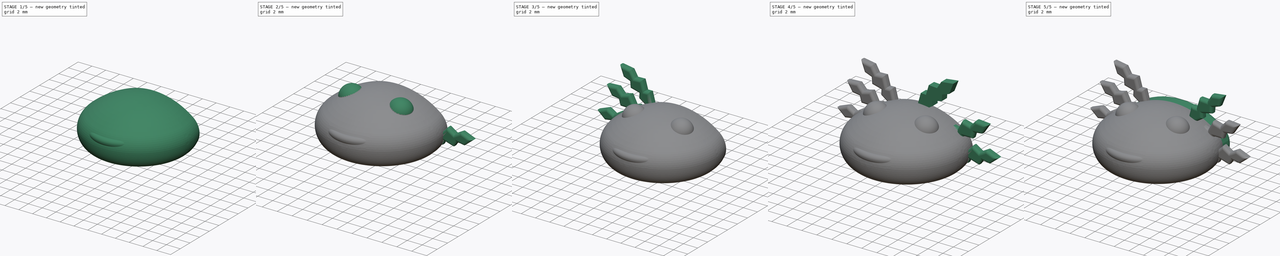
[diagram: build sequence overview — one tinted view per stage of 5, left to right]
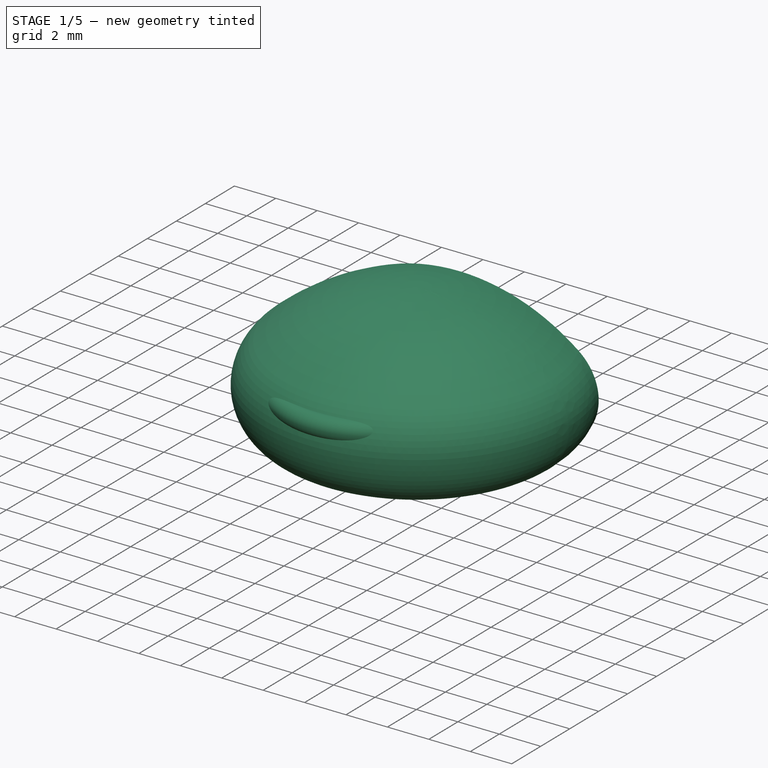
[diagram: stage 1 of 5 — iso view after this stage's code; geometry added in this stage tinted green]
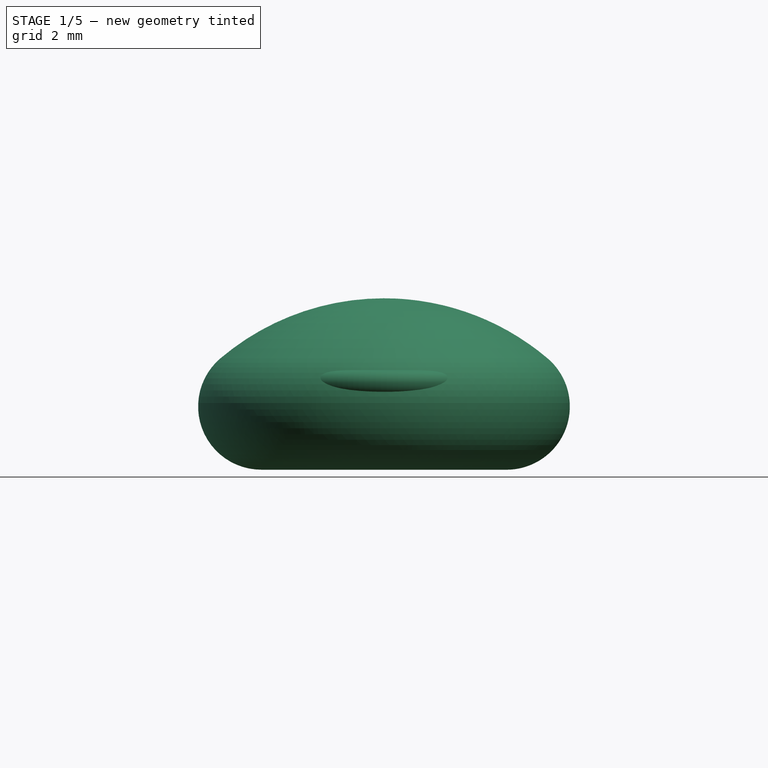
[diagram: stage 1 of 5 — front view after this stage's code; geometry added in this stage tinted green]
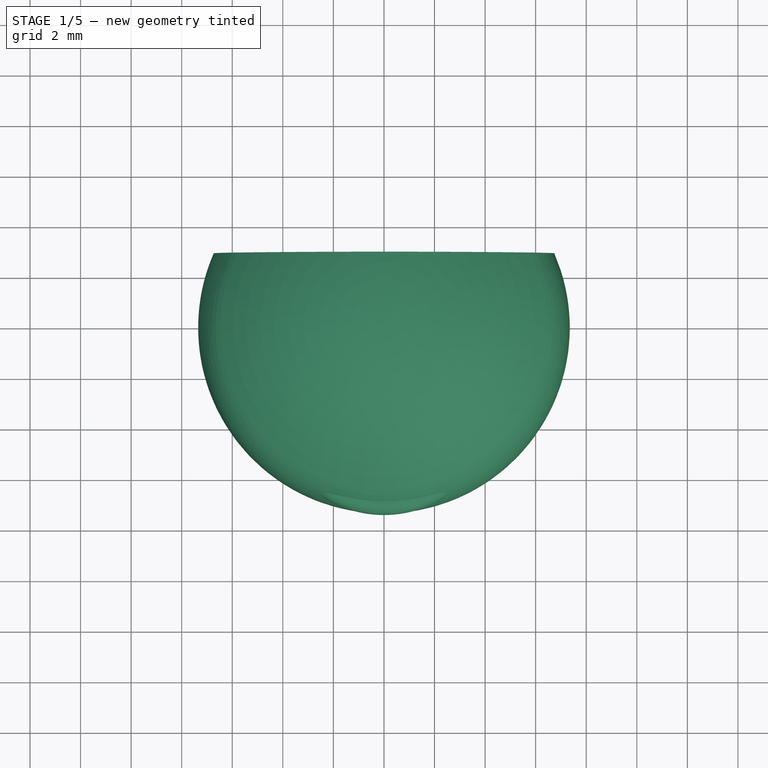
[diagram: stage 1 of 5 — top view after this stage's code; geometry added in this stage tinted green]
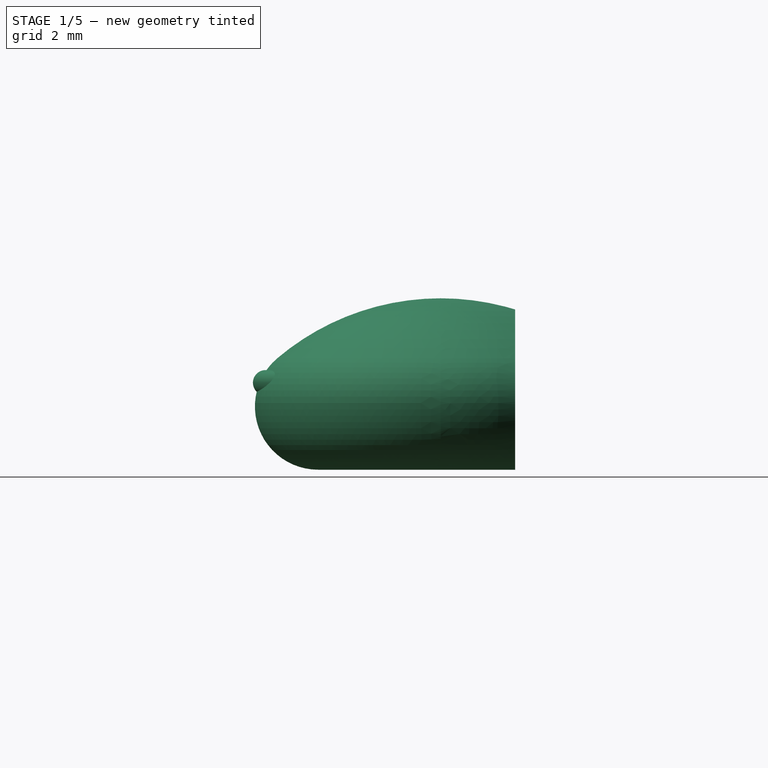
[diagram: stage 1 of 5 — right view after this stage's code; geometry added in this stage tinted green]
FCSTD DOCUMENT  (FreeCAD 1.0R38806 (Git))
Label: Cabeza-ajolote
License: All rights reserved
LicenseURL: https://en.wikipedia.org/wiki/All_rights_reserved
objects: Part::Fillet×14, Sketcher::SketchObject×7, Part::Extrusion×7, Part::MultiFuse×6, TechDraw::DrawProjGroupItem×4, Part::Sphere×3, Part::Box×2, Part::Cut×2, TechDraw::DrawProjGroup×2, Part::Torus×1, TechDraw::DrawSVGTemplate×1, TechDraw::DrawPage×1
note: 49 computed .brp shape members not serialized (recipe doc carries the construction recipe); baked Part::Feature solids carry a one-line shape summary decoded from their .brp

FEATURE [Part::Sphere] Sphere
  Angle1 = -90
  Angle2 = 90
  Angle3 = 360
  AttacherType = Attacher::AttachEngine3D
  Radius = 10
FEATURE [Part::Box] Box  label="Cube"
  AttacherType = Attacher::AttachEngine3D
  Height = 25
  Length = 25
  Placement = pos=(-11.86,2.94,-12.48) rot=(0,0,1;0rad)
  Width = 25
FEATURE [Part::Cut] Cut
  Base = -> Sphere
  Refine = true
  Tool = -> Box
FEATURE [Part::Box] Box001  label="Cube001"
  AttacherType = Attacher::AttachEngine3D
  Height = 25
  Length = 25
  Placement = pos=(-13.22,-13.51,-21.78) rot=(0,0,1;0rad)
  Width = 25
FEATURE [Part::Cut] Cut001
  Base = -> Cut
  Refine = true
  Tool = -> Box001
FEATURE [Part::Fillet] Fillet  label="cabeza"
  Base = -> Cut001
  EdgeLinks = -> Cut001 [Edge1]
  Edges = 1 edges r=2.5: [Edge1]
FEATURE [Part::Torus] Torus
  Angle1 = -180
  Angle2 = 180
  Angle3 = 360
  AttacherType = Attacher::AttachEngine3D
  Placement = pos=(0,-2.93,6.66) rot=(0,0,1;0rad)
  Radius1 = 4
  Radius2 = 0.5
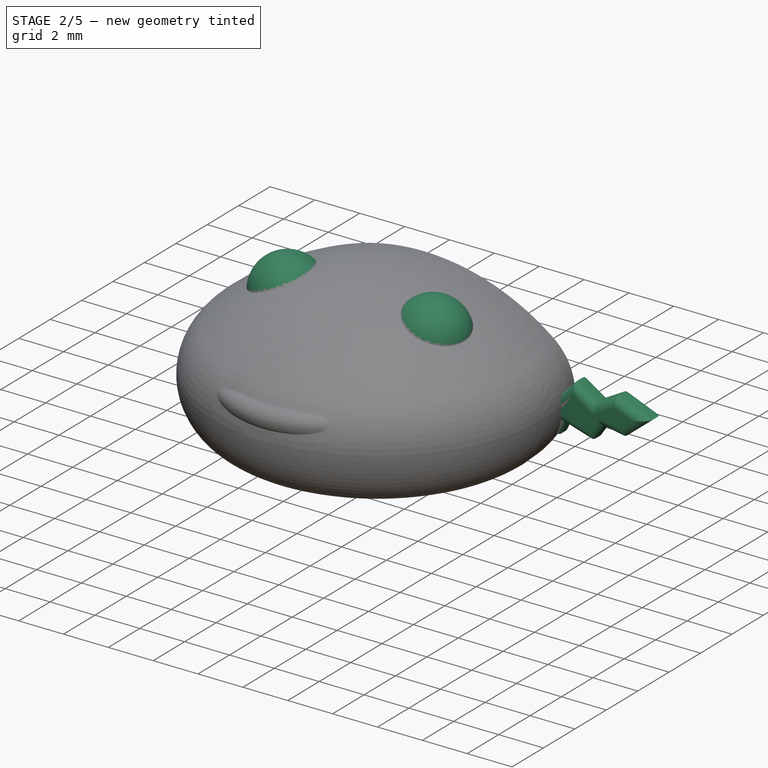
[diagram: stage 2 of 5 — iso view after this stage's code; geometry added in this stage tinted green]
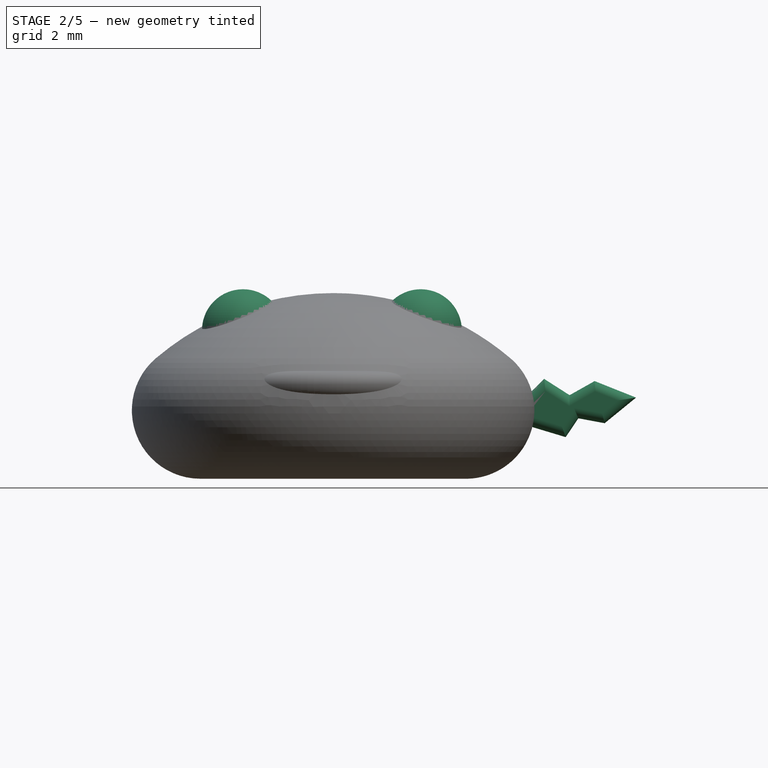
[diagram: stage 2 of 5 — front view after this stage's code; geometry added in this stage tinted green]
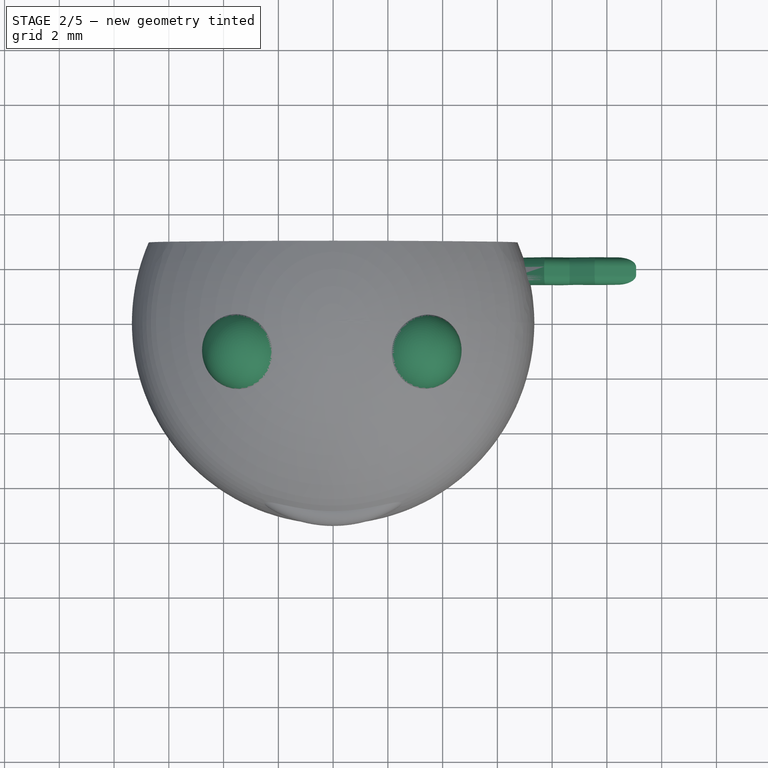
[diagram: stage 2 of 5 — top view after this stage's code; geometry added in this stage tinted green]
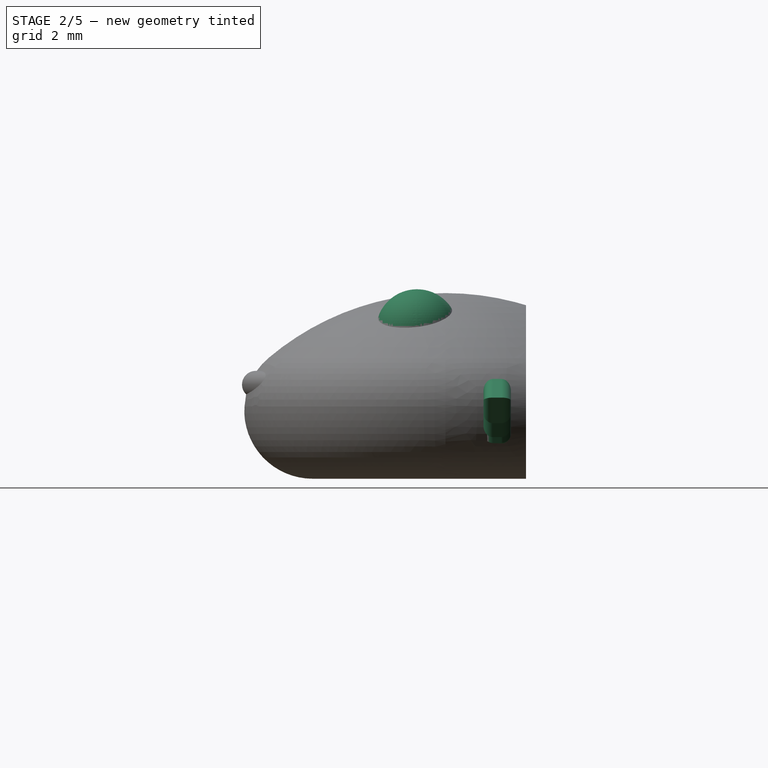
[diagram: stage 2 of 5 — right view after this stage's code; geometry added in this stage tinted green]
FEATURE [Part::Sphere] Sphere001  label="ojo-izdo"
  Angle1 = -90
  Angle2 = 90
  Angle3 = 360
  AttacherType = Attacher::AttachEngine3D
  Placement = pos=(3.2,-1.04,8.64) rot=(0,0,1;0rad)
  Radius = 1.5
FEATURE [Part::Sphere] Sphere002  label="ojo-drcho"
  Angle1 = -90
  Angle2 = 90
  Angle3 = 360
  AttacherType = Attacher::AttachEngine3D
  Placement = pos=(-3.29,-1.04,8.64) rot=(0,0,1;0rad)
  Radius = 1.5
FEATURE [Sketcher::SketchObject] Sketch008
  ArcFitTolerance = 1e-06
  FullyConstrained = false
  MakeInternals = false
  Placement = pos=(0,0,0) rot=(1,0,0;1.5708rad)
  sketch-geometry (13):
    g0: LineSegment StartX=0 StartY=9.96885 StartZ=0 EndX=0.507839 EndY=11.7568 EndZ=0
    g1: LineSegment StartX=0.507839 StartY=11.7568 StartZ=0 EndX=1.19552 EndY=11.7224 EndZ=0
    g2: LineSegment StartX=1.19552 StartY=11.7224 StartZ=0 EndX=1.57374 EndY=12.9946 EndZ=0
    g3: LineSegment StartX=1.57374 StartY=12.9946 StartZ=0 EndX=2.67402 EndY=12.9259 EndZ=0
    g4: LineSegment StartX=2.67402 StartY=12.9259 StartZ=0 EndX=3.22417 EndY=13.8198 EndZ=0
    g5: LineSegment StartX=3.22417 StartY=13.8198 StartZ=0 EndX=4.84021 EndY=14.0261 EndZ=0
    g6: LineSegment StartX=4.84021 StartY=14.0261 StartZ=0 EndX=4.29006 EndY=12.6508 EndZ=0
    g7: LineSegment StartX=4.29006 StartY=12.6508 StartZ=0 EndX=3.3617 EndY=12.3413 EndZ=0
    g8: LineSegment StartX=3.3617 StartY=12.3413 StartZ=0 EndX=3.29293 EndY=11.5161 EndZ=0
    g9: LineSegment StartX=3.29293 StartY=11.5161 StartZ=0 EndX=2.02073 EndY=11.2411 EndZ=0
    g10: LineSegment StartX=2.02073 StartY=11.2411 StartZ=0 EndX=2.05511 EndY=10.5878 EndZ=0
    g11: LineSegment StartX=2.05511 StartY=10.5878 StartZ=0 EndX=0.989213 EndY=9.90009 EndZ=0
    g12: LineSegment StartX=0.989213 StartY=9.90009 StartZ=0 EndX=0 EndY=9.96885 EndZ=0
  constraints (14):
    c: PointOnObject(g0,g-2)
    c: Coincident(g0,g1)
    c: Coincident(g1,g2)
    c: Coincident(g2,g3)
    c: Coincident(g3,g4)
    c: Coincident(g4,g5)
    c: Coincident(g5,g6)
    c: Coincident(g6,g7)
    c: Coincident(g7,g8)
    c: Coincident(g8,g9)
    c: Coincident(g9,g10)
    c: Coincident(g10,g11)
    c: Coincident(g11,g12)
    c: Coincident(g12,g0)
FEATURE [Part::Extrusion] Extrude006
  Base = -> Sketch008
  Dir = (0,-1,2e-16)
  DirMode = 2
  FaceMakerClass = Part::FaceMakerBullseye
  FaceMakerMode = 3
  LengthFwd = 1
  LengthRev = 0
  Placement = pos=(0,2.92,-0.63) rot=(0,0,1;0rad)
  Solid = true
  Symmetric = false
FEATURE [Part::Fillet] Fillet012
  Base = -> Extrude006
  EdgeLinks = -> Extrude006 [Edge4,Edge7,Edge10,Edge13,Edge16,Edge19,Edge22,Edge25,Edge28,Edge31,Edge34,Edge37]
  Edges = 12 edges r=0.35: [Edge4,Edge7,Edge10,Edge13,Edge16,Edge19,Edge22,Edge25,Edge28,Edge31,Edge34,Edge37]
FEATURE [Part::Fillet] Fillet013  label="cresta005"
  Base = -> Fillet012
  EdgeLinks = -> Fillet012 [Edge3,Edge12,Edge13,Edge14,Edge15,Edge16,Edge17,Edge18,Edge19,Edge20,Edge21,Edge22]
  Edges = 12 edges r=0.35: [Edge3,Edge12,Edge13,Edge14,Edge15,Edge16,Edge17,Edge18,Edge19,Edge20,Edge21,Edge22]
  Placement = pos=(0.337681,-0.53,-3.18565) rot=(0,1,0;0.506145rad)
FEATURE [Part::MultiFuse] Fusion004  label="ojos"
  Refine = true
  Shapes = -> [Sphere002,Sphere001]
FEATURE [Part::MultiFuse] Fusion005  label="cara"
  Refine = true
  Shapes = -> [Fillet,Torus]
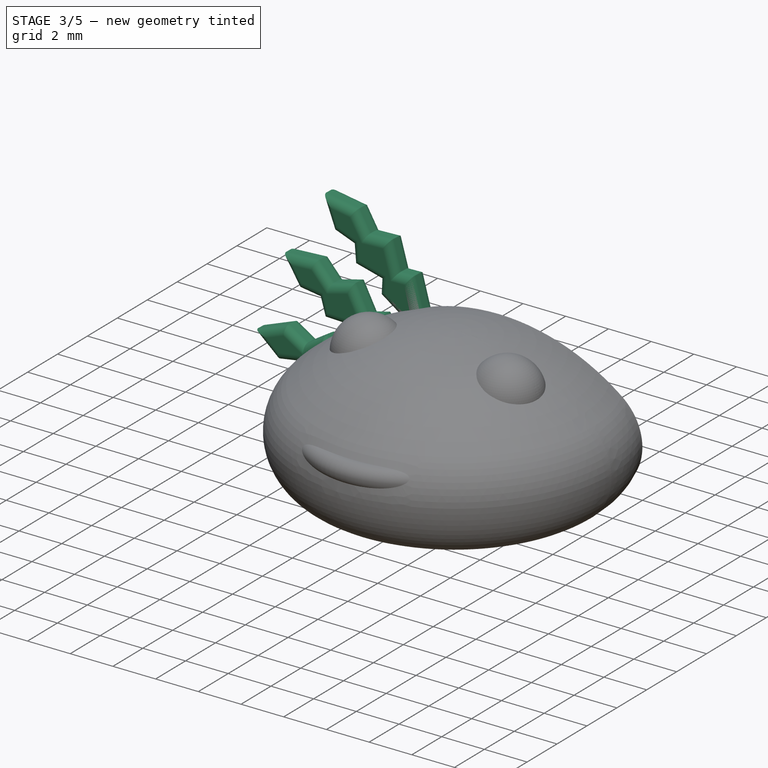
[diagram: stage 3 of 5 — iso view after this stage's code; geometry added in this stage tinted green]
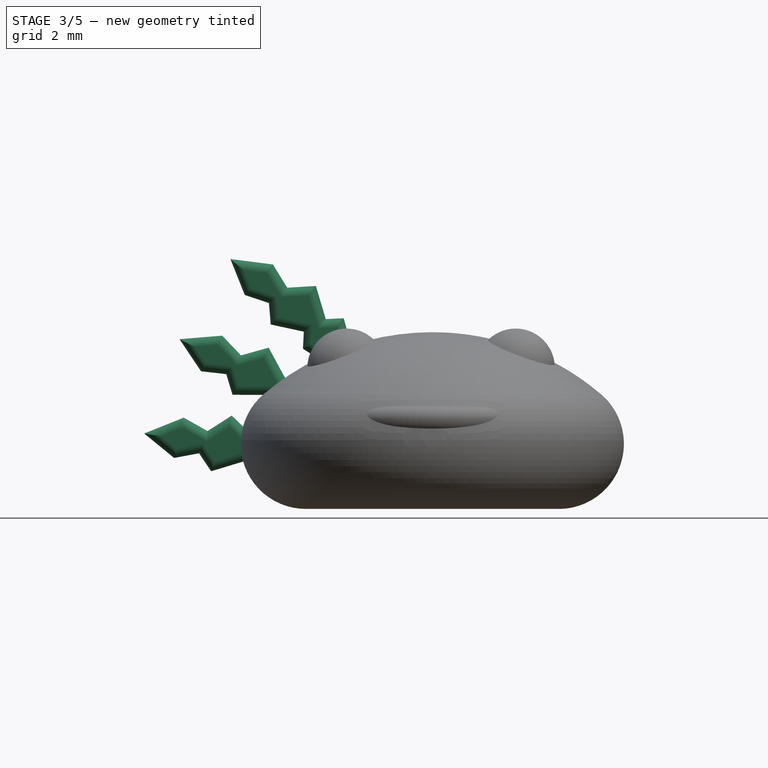
[diagram: stage 3 of 5 — front view after this stage's code; geometry added in this stage tinted green]
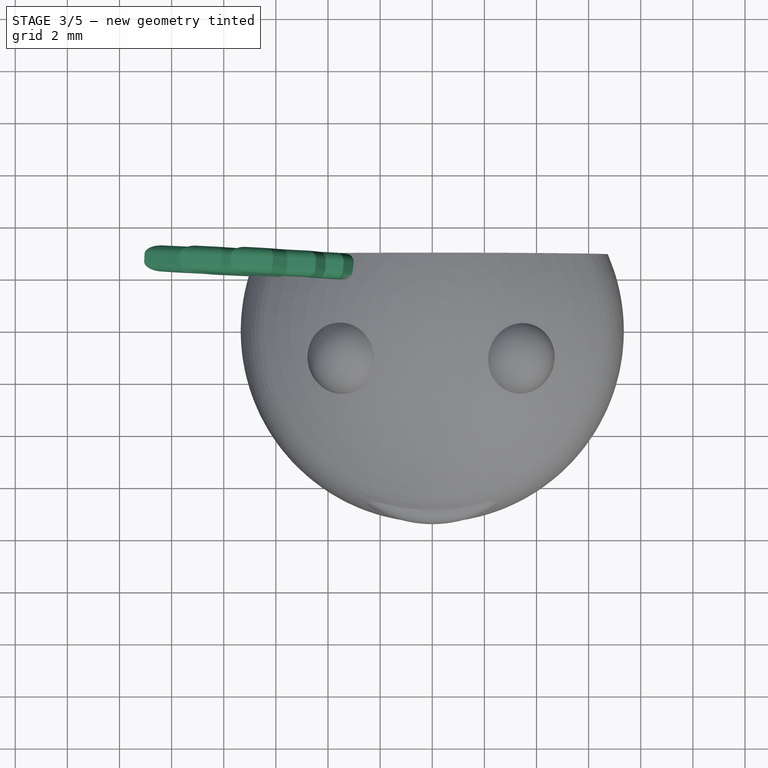
[diagram: stage 3 of 5 — top view after this stage's code; geometry added in this stage tinted green]
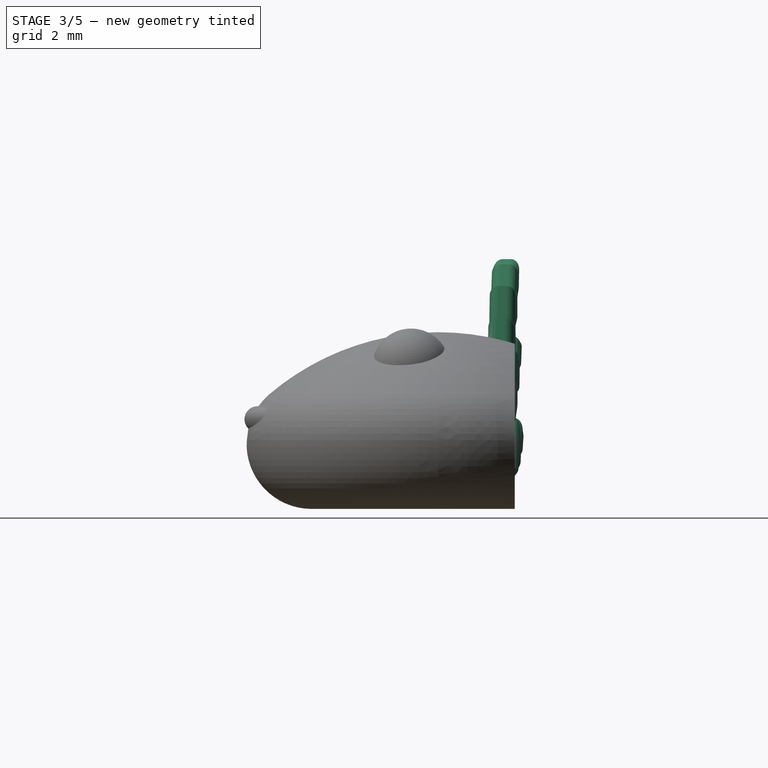
[diagram: stage 3 of 5 — right view after this stage's code; geometry added in this stage tinted green]
FEATURE [Sketcher::SketchObject] Sketch006  label="Sketch_cresta"
  ArcFitTolerance = 1e-06
  FullyConstrained = false
  MakeInternals = false
  Placement = pos=(0,0,0) rot=(1,0,0;1.5708rad)
  sketch-geometry (13):
    g0: LineSegment StartX=0 StartY=9.96615 StartZ=0 EndX=0.507839 EndY=11.7568 EndZ=0
    g1: LineSegment StartX=0.507839 StartY=11.7568 StartZ=0 EndX=1.19552 EndY=11.7224 EndZ=0
    g2: LineSegment StartX=1.19552 StartY=11.7224 StartZ=0 EndX=1.57374 EndY=12.9946 EndZ=0
    g3: LineSegment StartX=1.57374 StartY=12.9946 StartZ=0 EndX=2.67402 EndY=12.9259 EndZ=0
    g4: LineSegment StartX=2.67402 StartY=12.9259 StartZ=0 EndX=3.22417 EndY=13.8198 EndZ=0
    g5: LineSegment StartX=3.22417 StartY=13.8198 StartZ=0 EndX=4.84021 EndY=14.0261 EndZ=0
    g6: LineSegment StartX=4.84021 StartY=14.0261 StartZ=0 EndX=4.29006 EndY=12.6508 EndZ=0
    g7: LineSegment StartX=4.29006 StartY=12.6508 StartZ=0 EndX=3.3617 EndY=12.3413 EndZ=0
    g8: LineSegment StartX=3.3617 StartY=12.3413 StartZ=0 EndX=3.29293 EndY=11.5161 EndZ=0
    g9: LineSegment StartX=3.29293 StartY=11.5161 StartZ=0 EndX=2.02073 EndY=11.2411 EndZ=0
    g10: LineSegment StartX=2.02073 StartY=11.2411 StartZ=0 EndX=2.05511 EndY=10.5878 EndZ=0
    g11: LineSegment StartX=2.05511 StartY=10.5878 StartZ=0 EndX=0.989213 EndY=9.90009 EndZ=0
    g12: LineSegment StartX=0.989213 StartY=9.90009 StartZ=0 EndX=0 EndY=9.96615 EndZ=0
  constraints (15):
    c: PointOnObject(g0,g-2)
    c: Coincident(g0,g1)
    c: Coincident(g1,g2)
    c: Coincident(g2,g3)
    c: Coincident(g3,g4)
    c: Coincident(g4,g5)
    c: Coincident(g5,g6)
    c: Coincident(g6,g7)
    c: Coincident(g7,g8)
    c: Coincident(g8,g9)
    c: Coincident(g9,g10)
    c: Coincident(g10,g11)
    c: Coincident(g11,g12)
    c: Coincident(g12,g0)
    c: DistanceY(g0,g5) = 4.06
FEATURE [Part::Extrusion] Extrude004
  Base = -> Sketch006
  Dir = (0,-1,2e-16)
  DirMode = 2
  FaceMakerClass = Part::FaceMakerBullseye
  FaceMakerMode = 3
  LengthFwd = 1
  LengthRev = 0
  Placement = pos=(0,2.92,-0.63) rot=(0,0,1;0rad)
  Solid = true
  Symmetric = false
FEATURE [Part::Fillet] Fillet008
  Base = -> Extrude004
  EdgeLinks = -> Extrude004 [Edge4,Edge7,Edge10,Edge13,Edge16,Edge19,Edge22,Edge25,Edge28,Edge31,Edge34,Edge37]
  Edges = 12 edges r=0.35: [Edge4,Edge7,Edge10,Edge13,Edge16,Edge19,Edge22,Edge25,Edge28,Edge31,Edge34,Edge37]
FEATURE [Part::Fillet] Fillet009  label="cresta003"
  Base = -> Fillet008
  EdgeLinks = -> Fillet008 [Edge3,Edge12,Edge13,Edge14,Edge15,Edge16,Edge17,Edge18,Edge19,Edge20,Edge21,Edge22]
  Edges = 12 edges r=0.35: [Edge3,Edge12,Edge13,Edge14,Edge15,Edge16,Edge17,Edge18,Edge19,Edge20,Edge21,Edge22]
  Placement = pos=(2.91,-0.53,-0.52) rot=(0,0,1;0rad)
FEATURE [Sketcher::SketchObject] Sketch007
  ArcFitTolerance = 1e-06
  FullyConstrained = false
  MakeInternals = false
  Placement = pos=(0,0,0) rot=(1,0,0;1.5708rad)
  sketch-geometry (13):
    g0: LineSegment StartX=0 StartY=9.96885 StartZ=0 EndX=0.507839 EndY=11.7568 EndZ=0
    g1: LineSegment StartX=0.507839 StartY=11.7568 StartZ=0 EndX=1.19552 EndY=11.7224 EndZ=0
    g2: LineSegment StartX=1.19552 StartY=11.7224 StartZ=0 EndX=1.57374 EndY=12.9946 EndZ=0
    g3: LineSegment StartX=1.57374 StartY=12.9946 StartZ=0 EndX=2.67402 EndY=12.9259 EndZ=0
    g4: LineSegment StartX=2.67402 StartY=12.9259 StartZ=0 EndX=3.22417 EndY=13.8198 EndZ=0
    g5: LineSegment StartX=3.22417 StartY=13.8198 StartZ=0 EndX=4.84021 EndY=14.0261 EndZ=0
    g6: LineSegment StartX=4.84021 StartY=14.0261 StartZ=0 EndX=4.29006 EndY=12.6508 EndZ=0
    g7: LineSegment StartX=4.29006 StartY=12.6508 StartZ=0 EndX=3.3617 EndY=12.3413 EndZ=0
    g8: LineSegment StartX=3.3617 StartY=12.3413 StartZ=0 EndX=3.29293 EndY=11.5161 EndZ=0
    g9: LineSegment StartX=3.29293 StartY=11.5161 StartZ=0 EndX=2.02073 EndY=11.2411 EndZ=0
    g10: LineSegment StartX=2.02073 StartY=11.2411 StartZ=0 EndX=2.05511 EndY=10.5878 EndZ=0
    g11: LineSegment StartX=2.05511 StartY=10.5878 StartZ=0 EndX=0.989213 EndY=9.90009 EndZ=0
    g12: LineSegment StartX=0.989213 StartY=9.90009 StartZ=0 EndX=0 EndY=9.96885 EndZ=0
  constraints (14):
    c: PointOnObject(g0,g-2)
    c: Coincident(g0,g1)
    c: Coincident(g1,g2)
    c: Coincident(g2,g3)
    c: Coincident(g3,g4)
    c: Coincident(g4,g5)
    c: Coincident(g5,g6)
    c: Coincident(g6,g7)
    c: Coincident(g7,g8)
    c: Coincident(g8,g9)
    c: Coincident(g9,g10)
    c: Coincident(g10,g11)
    c: Coincident(g11,g12)
    c: Coincident(g12,g0)
FEATURE [Part::Extrusion] Extrude005
  Base = -> Sketch007
  Dir = (0,-1,2e-16)
  DirMode = 2
  FaceMakerClass = Part::FaceMakerBullseye
  FaceMakerMode = 3
  LengthFwd = 1
  LengthRev = 0
  Placement = pos=(0,2.92,-0.63) rot=(0,0,1;0rad)
  Solid = true
  Symmetric = false
FEATURE [Part::Fillet] Fillet010
  Base = -> Extrude005
  EdgeLinks = -> Extrude005 [Edge4,Edge7,Edge10,Edge13,Edge16,Edge19,Edge22,Edge25,Edge28,Edge31,Edge34,Edge37]
  Edges = 12 edges r=0.35: [Edge4,Edge7,Edge10,Edge13,Edge16,Edge19,Edge22,Edge25,Edge28,Edge31,Edge34,Edge37]
FEATURE [Part::Fillet] Fillet011  label="cresta004"
  Base = -> Fillet010
  EdgeLinks = -> Fillet010 [Edge3,Edge12,Edge13,Edge14,Edge15,Edge16,Edge17,Edge18,Edge19,Edge20,Edge21,Edge22]
  Edges = 12 edges r=0.35: [Edge3,Edge12,Edge13,Edge14,Edge15,Edge16,Edge17,Edge18,Edge19,Edge20,Edge21,Edge22]
  Placement = pos=(2.18708,-0.53,-2.29432) rot=(0,1,0;0.20944rad)
FEATURE [Part::MultiFuse] Fusion003  label="crestas-drcha"
  Placement = pos=(0.102025,4.1202,-0.07) rot=(0,0,1;3.08923rad)
  Refine = true
  Shapes = -> [Fillet009,Fillet011,Fillet013]
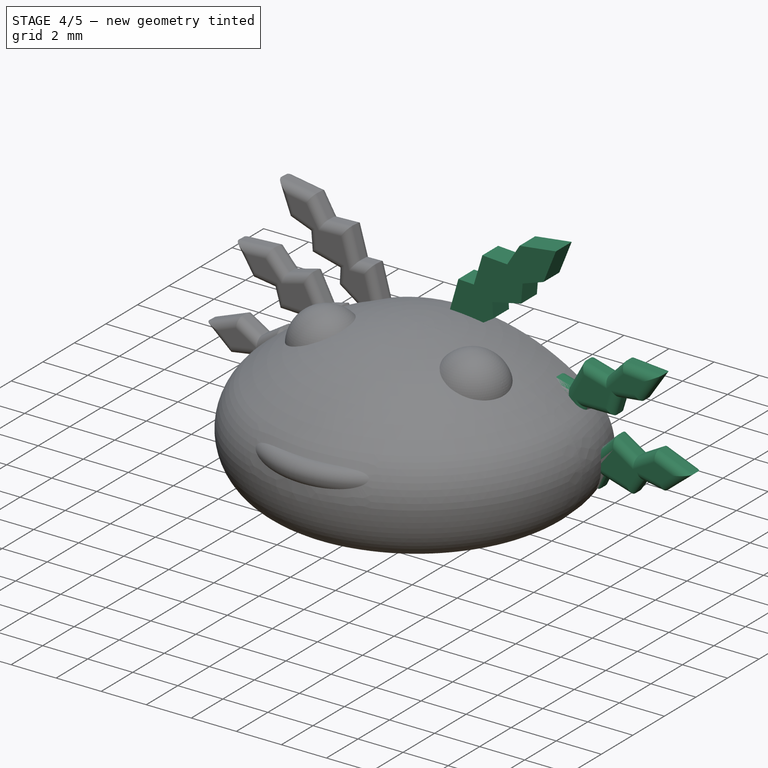
[diagram: stage 4 of 5 — iso view after this stage's code; geometry added in this stage tinted green]
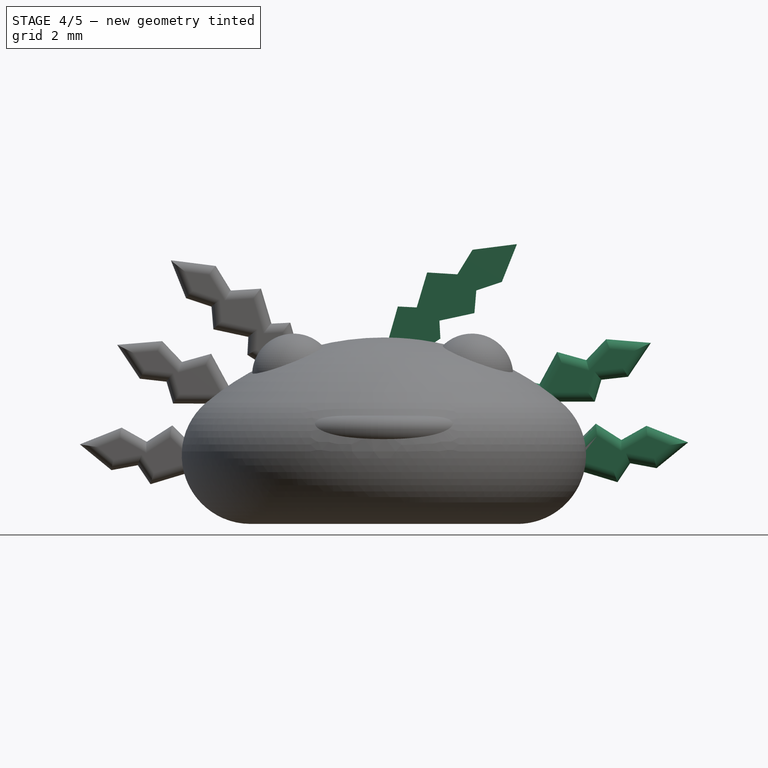
[diagram: stage 4 of 5 — front view after this stage's code; geometry added in this stage tinted green]
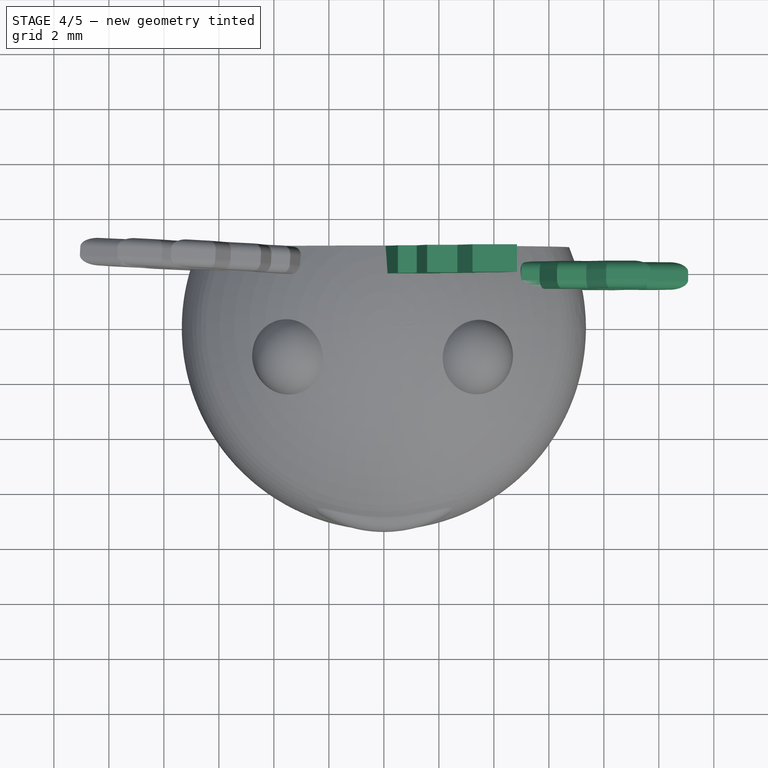
[diagram: stage 4 of 5 — top view after this stage's code; geometry added in this stage tinted green]
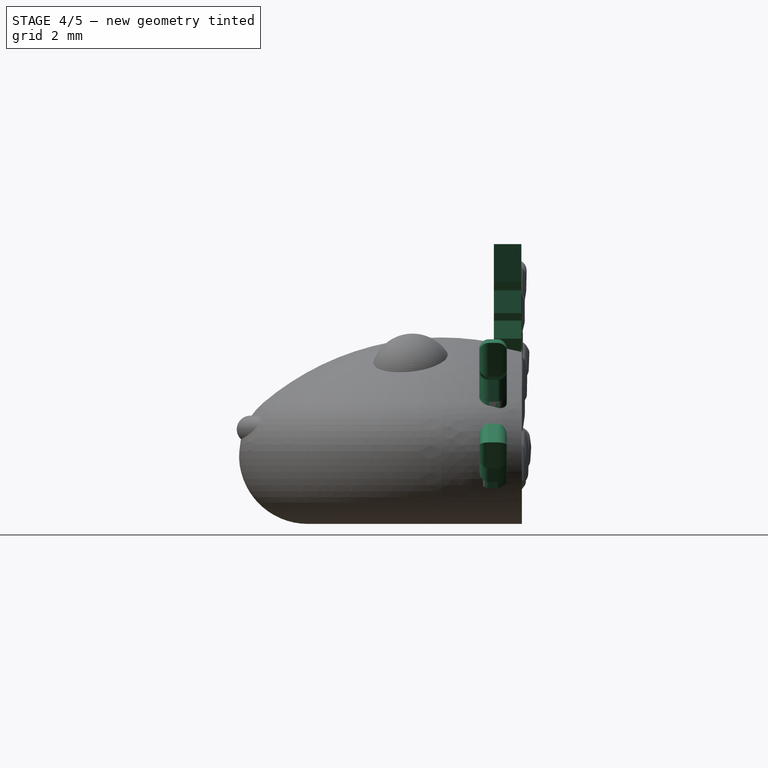
[diagram: stage 4 of 5 — right view after this stage's code; geometry added in this stage tinted green]
FEATURE [Sketcher::SketchObject] Sketch003
  ArcFitTolerance = 1e-06
  FullyConstrained = false
  MakeInternals = false
  Placement = pos=(0,0,0) rot=(1,0,0;1.5708rad)
  sketch-geometry (13):
    g0: LineSegment StartX=0 StartY=9.96885 StartZ=0 EndX=0.507839 EndY=11.7568 EndZ=0
    g1: LineSegment StartX=0.507839 StartY=11.7568 StartZ=0 EndX=1.19552 EndY=11.7224 EndZ=0
    g2: LineSegment StartX=1.19552 StartY=11.7224 StartZ=0 EndX=1.57374 EndY=12.9946 EndZ=0
    g3: LineSegment StartX=1.57374 StartY=12.9946 StartZ=0 EndX=2.67402 EndY=12.9259 EndZ=0
    g4: LineSegment StartX=2.67402 StartY=12.9259 StartZ=0 EndX=3.22417 EndY=13.8198 EndZ=0
    g5: LineSegment StartX=3.22417 StartY=13.8198 StartZ=0 EndX=4.84021 EndY=14.0261 EndZ=0
    g6: LineSegment StartX=4.84021 StartY=14.0261 StartZ=0 EndX=4.29006 EndY=12.6508 EndZ=0
    g7: LineSegment StartX=4.29006 StartY=12.6508 StartZ=0 EndX=3.3617 EndY=12.3413 EndZ=0
    g8: LineSegment StartX=3.3617 StartY=12.3413 StartZ=0 EndX=3.29293 EndY=11.5161 EndZ=0
    g9: LineSegment StartX=3.29293 StartY=11.5161 StartZ=0 EndX=2.02073 EndY=11.2411 EndZ=0
    g10: LineSegment StartX=2.02073 StartY=11.2411 StartZ=0 EndX=2.05511 EndY=10.5878 EndZ=0
    g11: LineSegment StartX=2.05511 StartY=10.5878 StartZ=0 EndX=0.989213 EndY=9.90009 EndZ=0
    g12: LineSegment StartX=0.989213 StartY=9.90009 StartZ=0 EndX=0 EndY=9.96885 EndZ=0
  constraints (14):
    c: PointOnObject(g0,g-2)
    c: Coincident(g0,g1)
    c: Coincident(g1,g2)
    c: Coincident(g2,g3)
    c: Coincident(g3,g4)
    c: Coincident(g4,g5)
    c: Coincident(g5,g6)
    c: Coincident(g6,g7)
    c: Coincident(g7,g8)
    c: Coincident(g8,g9)
    c: Coincident(g9,g10)
    c: Coincident(g10,g11)
    c: Coincident(g11,g12)
    c: Coincident(g12,g0)
FEATURE [Part::Extrusion] Extrude001
  Base = -> Sketch003
  Dir = (0,-1,2e-16)
  DirMode = 2
  FaceMakerClass = Part::FaceMakerBullseye
  FaceMakerMode = 3
  LengthFwd = 1
  LengthRev = 0
  Placement = pos=(0,2.92,-0.63) rot=(0,0,1;0rad)
  Solid = true
  Symmetric = false
FEATURE [Sketcher::SketchObject] Sketch004
  ArcFitTolerance = 1e-06
  FullyConstrained = false
  MakeInternals = false
  Placement = pos=(0,0,0) rot=(1,0,0;1.5708rad)
  sketch-geometry (13):
    g0: LineSegment StartX=0 StartY=9.96885 StartZ=0 EndX=0.507839 EndY=11.7568 EndZ=0
    g1: LineSegment StartX=0.507839 StartY=11.7568 StartZ=0 EndX=1.19552 EndY=11.7224 EndZ=0
    g2: LineSegment StartX=1.19552 StartY=11.7224 StartZ=0 EndX=1.57374 EndY=12.9946 EndZ=0
    g3: LineSegment StartX=1.57374 StartY=12.9946 StartZ=0 EndX=2.67402 EndY=12.9259 EndZ=0
    g4: LineSegment StartX=2.67402 StartY=12.9259 StartZ=0 EndX=3.22417 EndY=13.8198 EndZ=0
    g5: LineSegment StartX=3.22417 StartY=13.8198 StartZ=0 EndX=4.84021 EndY=14.0261 EndZ=0
    g6: LineSegment StartX=4.84021 StartY=14.0261 StartZ=0 EndX=4.29006 EndY=12.6508 EndZ=0
    g7: LineSegment StartX=4.29006 StartY=12.6508 StartZ=0 EndX=3.3617 EndY=12.3413 EndZ=0
    g8: LineSegment StartX=3.3617 StartY=12.3413 StartZ=0 EndX=3.29293 EndY=11.5161 EndZ=0
    g9: LineSegment StartX=3.29293 StartY=11.5161 StartZ=0 EndX=2.02073 EndY=11.2411 EndZ=0
    g10: LineSegment StartX=2.02073 StartY=11.2411 StartZ=0 EndX=2.05511 EndY=10.5878 EndZ=0
    g11: LineSegment StartX=2.05511 StartY=10.5878 StartZ=0 EndX=0.989213 EndY=9.90009 EndZ=0
    g12: LineSegment StartX=0.989213 StartY=9.90009 StartZ=0 EndX=0 EndY=9.96885 EndZ=0
  constraints (14):
    c: PointOnObject(g0,g-2)
    c: Coincident(g0,g1)
    c: Coincident(g1,g2)
    c: Coincident(g2,g3)
    c: Coincident(g3,g4)
    c: Coincident(g4,g5)
    c: Coincident(g5,g6)
    c: Coincident(g6,g7)
    c: Coincident(g7,g8)
    c: Coincident(g8,g9)
    c: Coincident(g9,g10)
    c: Coincident(g10,g11)
    c: Coincident(g11,g12)
    c: Coincident(g12,g0)
FEATURE [Part::Extrusion] Extrude002
  Base = -> Sketch004
  Dir = (0,-1,2e-16)
  DirMode = 2
  FaceMakerClass = Part::FaceMakerBullseye
  FaceMakerMode = 3
  LengthFwd = 1
  LengthRev = 0
  Placement = pos=(0,2.92,-0.63) rot=(0,0,1;0rad)
  Solid = true
  Symmetric = false
FEATURE [Part::Fillet] Fillet004
  Base = -> Extrude002
  EdgeLinks = -> Extrude002 [Edge4,Edge7,Edge10,Edge13,Edge16,Edge19,Edge22,Edge25,Edge28,Edge31,Edge34,Edge37]
  Edges = 12 edges r=0.35: [Edge4,Edge7,Edge10,Edge13,Edge16,Edge19,Edge22,Edge25,Edge28,Edge31,Edge34,Edge37]
FEATURE [Part::Fillet] Fillet005  label="cresta001"
  Base = -> Fillet004
  EdgeLinks = -> Fillet004 [Edge3,Edge12,Edge13,Edge14,Edge15,Edge16,Edge17,Edge18,Edge19,Edge20,Edge21,Edge22]
  Edges = 12 edges r=0.35: [Edge3,Edge12,Edge13,Edge14,Edge15,Edge16,Edge17,Edge18,Edge19,Edge20,Edge21,Edge22]
  Placement = pos=(2.18708,-0.53,-2.29432) rot=(0,1,0;0.20944rad)
FEATURE [Sketcher::SketchObject] Sketch005
  ArcFitTolerance = 1e-06
  FullyConstrained = false
  MakeInternals = false
  Placement = pos=(0,0,0) rot=(1,0,0;1.5708rad)
  sketch-geometry (13):
    g0: LineSegment StartX=0 StartY=9.96885 StartZ=0 EndX=0.507839 EndY=11.7568 EndZ=0
    g1: LineSegment StartX=0.507839 StartY=11.7568 StartZ=0 EndX=1.19552 EndY=11.7224 EndZ=0
    g2: LineSegment StartX=1.19552 StartY=11.7224 StartZ=0 EndX=1.57374 EndY=12.9946 EndZ=0
    g3: LineSegment StartX=1.57374 StartY=12.9946 StartZ=0 EndX=2.67402 EndY=12.9259 EndZ=0
    g4: LineSegment StartX=2.67402 StartY=12.9259 StartZ=0 EndX=3.22417 EndY=13.8198 EndZ=0
    g5: LineSegment StartX=3.22417 StartY=13.8198 StartZ=0 EndX=4.84021 EndY=14.0261 EndZ=0
    g6: LineSegment StartX=4.84021 StartY=14.0261 StartZ=0 EndX=4.29006 EndY=12.6508 EndZ=0
    g7: LineSegment StartX=4.29006 StartY=12.6508 StartZ=0 EndX=3.3617 EndY=12.3413 EndZ=0
    g8: LineSegment StartX=3.3617 StartY=12.3413 StartZ=0 EndX=3.29293 EndY=11.5161 EndZ=0
    g9: LineSegment StartX=3.29293 StartY=11.5161 StartZ=0 EndX=2.02073 EndY=11.2411 EndZ=0
    g10: LineSegment StartX=2.02073 StartY=11.2411 StartZ=0 EndX=2.05511 EndY=10.5878 EndZ=0
    g11: LineSegment StartX=2.05511 StartY=10.5878 StartZ=0 EndX=0.989213 EndY=9.90009 EndZ=0
    g12: LineSegment StartX=0.989213 StartY=9.90009 StartZ=0 EndX=0 EndY=9.96885 EndZ=0
  constraints (14):
    c: PointOnObject(g0,g-2)
    c: Coincident(g0,g1)
    c: Coincident(g1,g2)
    c: Coincident(g2,g3)
    c: Coincident(g3,g4)
    c: Coincident(g4,g5)
    c: Coincident(g5,g6)
    c: Coincident(g6,g7)
    c: Coincident(g7,g8)
    c: Coincident(g8,g9)
    c: Coincident(g9,g10)
    c: Coincident(g10,g11)
    c: Coincident(g11,g12)
    c: Coincident(g12,g0)
FEATURE [Part::Extrusion] Extrude003
  Base = -> Sketch005
  Dir = (0,-1,2e-16)
  DirMode = 2
  FaceMakerClass = Part::FaceMakerBullseye
  FaceMakerMode = 3
  LengthFwd = 1
  LengthRev = 0
  Placement = pos=(0,2.92,-0.63) rot=(0,0,1;0rad)
  Solid = true
  Symmetric = false
FEATURE [Part::Fillet] Fillet006
  Base = -> Extrude003
  EdgeLinks = -> Extrude003 [Edge4,Edge7,Edge10,Edge13,Edge16,Edge19,Edge22,Edge25,Edge28,Edge31,Edge34,Edge37]
  Edges = 12 edges r=0.35: [Edge4,Edge7,Edge10,Edge13,Edge16,Edge19,Edge22,Edge25,Edge28,Edge31,Edge34,Edge37]
FEATURE [Part::Fillet] Fillet007  label="cresta002"
  Base = -> Fillet006
  EdgeLinks = -> Fillet006 [Edge3,Edge12,Edge13,Edge14,Edge15,Edge16,Edge17,Edge18,Edge19,Edge20,Edge21,Edge22]
  Edges = 12 edges r=0.35: [Edge3,Edge12,Edge13,Edge14,Edge15,Edge16,Edge17,Edge18,Edge19,Edge20,Edge21,Edge22]
  Placement = pos=(0.337681,-0.53,-3.18565) rot=(0,1,0;0.506145rad)
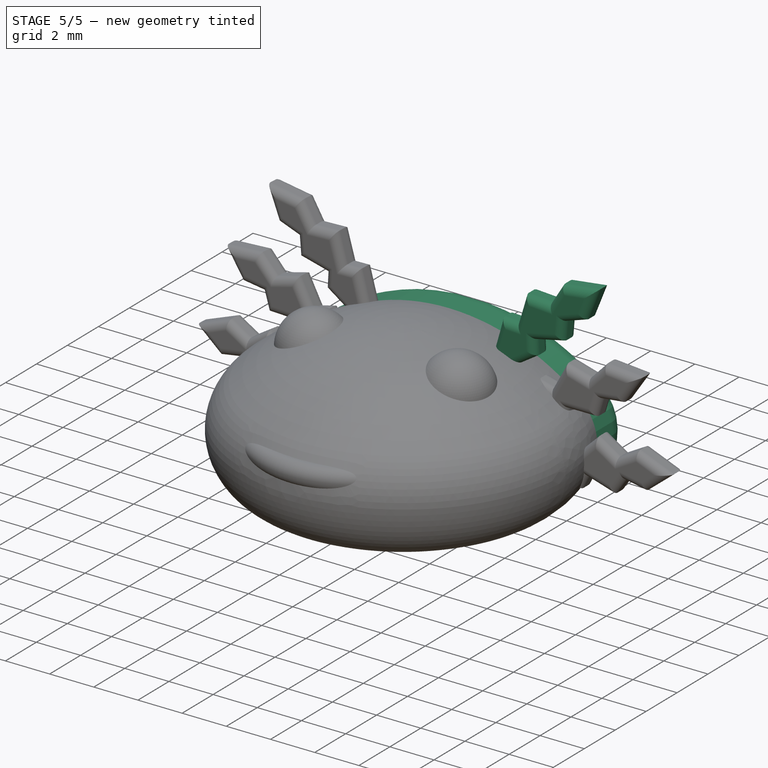
[diagram: stage 5 of 5 — iso view after this stage's code; geometry added in this stage tinted green]
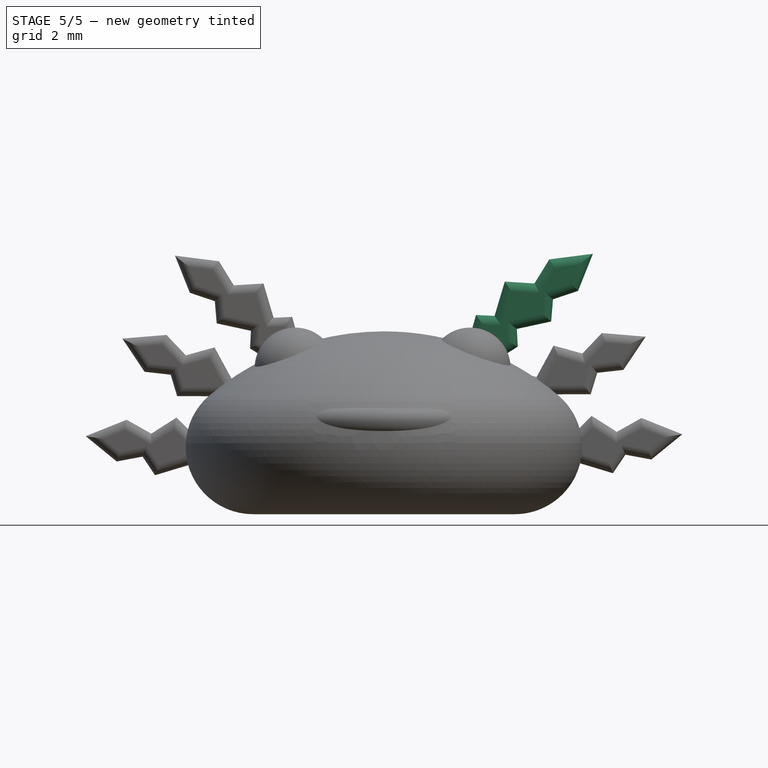
[diagram: stage 5 of 5 — front view after this stage's code; geometry added in this stage tinted green]
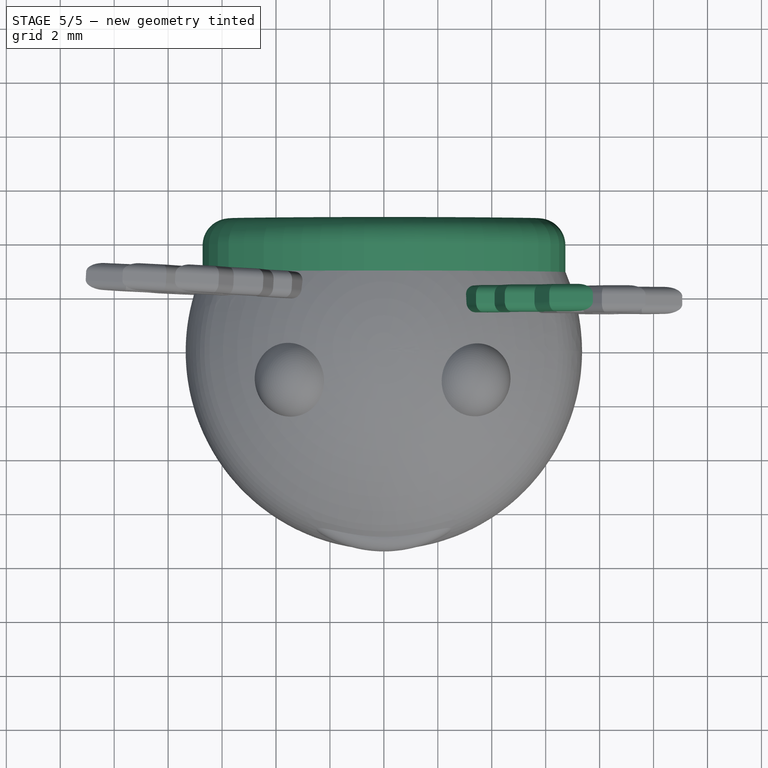
[diagram: stage 5 of 5 — top view after this stage's code; geometry added in this stage tinted green]
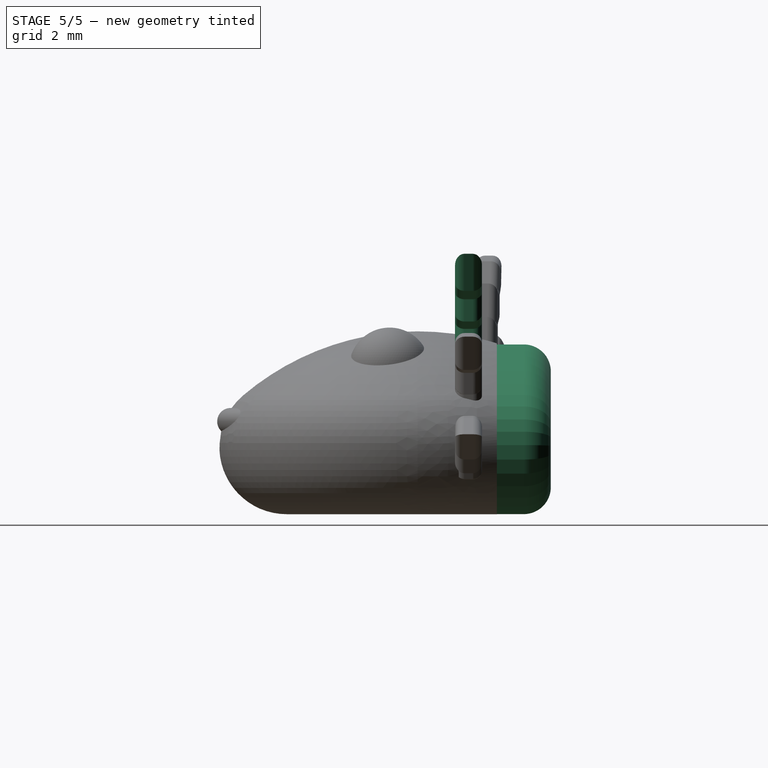
[diagram: stage 5 of 5 — right view after this stage's code; geometry added in this stage tinted green]
FEATURE [Sketcher::SketchObject] Sketch001  label="Sketch_cara_cuello"
  ArcFitTolerance = 1e-06
  AttachmentSupport = -> [Fillet]
  FullyConstrained = false
  MakeInternals = false
  MapMode = 5
  Placement = pos=(0,2.94,0) rot=(0,0.707107,0.707107;3.14159rad)
  sketch-geometry (41):
    g0: LineSegment StartX=-3.94 StartY=3.2236 StartZ=0 EndX=4 EndY=3.2236 EndZ=0
    g1: LineSegment StartX=4 StartY=3.2236 StartZ=0 EndX=4.57529 EndY=3.30615 EndZ=0
    g2: LineSegment StartX=4.57529 StartY=3.30615 StartZ=0 EndX=5.07056 EndY=3.44372 EndZ=0
    g3: LineSegment StartX=5.07056 StartY=3.44372 StartZ=0 EndX=5.62086 EndY=3.73263 EndZ=0
    g4: LineSegment StartX=5.62086 StartY=3.73263 StartZ=0 EndX=6.10237 EndY=4.14535 EndZ=0
    g5: LineSegment StartX=6.10237 StartY=4.14535 StartZ=0 EndX=6.41879 EndY=4.58559 EndZ=0
    g6: LineSegment StartX=6.41879 StartY=4.58559 StartZ=0 EndX=6.63891 EndY=5.10837 EndZ=0
    g7: LineSegment StartX=6.63891 StartY=5.10837 StartZ=0 EndX=6.72 EndY=5.63115 EndZ=0
    g8: LineSegment StartX=6.72 StartY=5.63115 StartZ=0 EndX=6.65266 EndY=6.19521 EndZ=0
    g9: LineSegment StartX=6.65266 StartY=6.19521 StartZ=0 EndX=6.48757 EndY=6.7455 EndZ=0
    g10: LineSegment StartX=6.48757 StartY=6.7455 StartZ=0 EndX=6.1574 EndY=7.24077 EndZ=0
    g11: LineSegment StartX=6.1574 StartY=7.24077 StartZ=0 EndX=5.75843 EndY=7.63973 EndZ=0
    g12: LineSegment StartX=5.75843 StartY=7.63973 StartZ=0 EndX=5.19438 EndY=8.01118 EndZ=0
    g13: LineSegment StartX=5.19438 StartY=8.01118 StartZ=0 EndX=4.45148 EndY=8.46518 EndZ=0
    g14: LineSegment StartX=4.45148 StartY=8.46518 StartZ=0 EndX=3.74985 EndY=8.7816 EndZ=0
    g15: LineSegment StartX=3.74985 StartY=8.7816 StartZ=0 EndX=3.06198 EndY=9.04299 EndZ=0
    g16: LineSegment StartX=3.06198 StartY=9.04299 StartZ=0 EndX=2.37411 EndY=9.24935 EndZ=0
    g17: LineSegment StartX=2.37411 StartY=9.24935 StartZ=0 EndX=1.56242 EndY=9.41444 EndZ=0
    g18: LineSegment StartX=1.56242 StartY=9.41444 StartZ=0 EndX=0.736976 EndY=9.5136 EndZ=0
    g19: LineSegment StartX=0.736976 StartY=9.5136 StartZ=0 EndX=-0.157255 EndY=9.5136 EndZ=0
    g20: LineSegment StartX=-0.157255 StartY=9.5136 StartZ=0 EndX=-0.762582 EndY=9.5136 EndZ=0
    g21: LineSegment StartX=-0.762582 StartY=9.5136 StartZ=0 EndX=-1.50548 EndY=9.4282 EndZ=0
    g22: LineSegment StartX=-1.50548 StartY=9.4282 StartZ=0 EndX=-2.31717 EndY=9.26311 EndZ=0
    g23: LineSegment StartX=-2.31717 StartY=9.26311 StartZ=0 EndX=-3.00504 EndY=9.07051 EndZ=0
    g24: LineSegment StartX=-3.00504 StartY=9.07051 StartZ=0 EndX=-3.72043 EndY=8.80911 EndZ=0
    g25: LineSegment StartX=-3.72043 StartY=8.80911 StartZ=0 EndX=-4.32575 EndY=8.52021 EndZ=0
    g26: LineSegment StartX=-4.32575 StartY=8.52021 StartZ=0 EndX=-4.76599 EndY=8.27257 EndZ=0
    g27: LineSegment StartX=-4.76599 StartY=8.27257 StartZ=0 EndX=-5.17871 EndY=8.02494 EndZ=0
    g28: LineSegment StartX=-5.17871 StartY=8.02494 StartZ=0 EndX=-5.72901 EndY=7.63973 EndZ=0
    g29: LineSegment StartX=-5.72901 StartY=7.63973 StartZ=0 EndX=-6.183 EndY=7.21326 EndZ=0
    g30: LineSegment StartX=-6.183 StartY=7.21326 StartZ=0 EndX=-6.49942 EndY=6.73175 EndZ=0
    g31: LineSegment StartX=-6.49942 StartY=6.73175 StartZ=0 EndX=-6.66451 EndY=6.27775 EndZ=0
    g32: LineSegment StartX=-6.66451 StartY=6.27775 StartZ=0 EndX=-6.73 EndY=5.78248 EndZ=0
    g33: LineSegment StartX=-6.73 StartY=5.78248 StartZ=0 EndX=-6.69203 EndY=5.24594 EndZ=0
    g34: LineSegment StartX=-6.69203 StartY=5.24594 StartZ=0 EndX=-6.48567 EndY=4.72316 EndZ=0
    g35: LineSegment StartX=-6.48567 StartY=4.72316 StartZ=0 EndX=-6.21052 EndY=4.25541 EndZ=0
    g36: LineSegment StartX=-6.21052 StartY=4.25541 StartZ=0 EndX=-5.77028 EndY=3.82893 EndZ=0
    g37: LineSegment StartX=-5.77028 StartY=3.82893 StartZ=0 EndX=-5.2475 EndY=3.51251 EndZ=0
    g38: LineSegment StartX=-5.2475 StartY=3.51251 StartZ=0 EndX=-4.61466 EndY=3.30615 EndZ=0
    g39: LineSegment StartX=-4.61466 StartY=3.30615 StartZ=0 EndX=-4.25697 EndY=3.2236 EndZ=0
    g40: LineSegment StartX=-4.25697 StartY=3.2236 StartZ=0 EndX=-3.94 EndY=3.2236 EndZ=0
  constraints (50):
    c: Horizontal(g0)
    c: Coincident(g0,g1)
    c: Coincident(g1,g2)
    c: Coincident(g2,g3)
    c: Coincident(g3,g4)
    c: Coincident(g4,g5)
    c: Coincident(g5,g6)
    c: Coincident(g6,g7)
    c: Coincident(g7,g8)
    c: Coincident(g8,g9)
    c: Coincident(g9,g10)
    c: Coincident(g10,g11)
    c: Coincident(g11,g12)
    c: Coincident(g12,g13)
    c: Coincident(g13,g14)
    c: Coincident(g14,g15)
    c: Coincident(g15,g16)
    c: Coincident(g16,g17)
    c: Coincident(g17,g18)
    c: Coincident(g18,g19)
    c: Horizontal(g19)
    c: Coincident(g19,g20)
    c: Horizontal(g20)
    c: Coincident(g20,g21)
    c: Coincident(g21,g22)
    c: Coincident(g22,g23)
    c: Coincident(g23,g24)
    c: Coincident(g24,g25)
    c: Coincident(g25,g26)
    c: Coincident(g26,g27)
    c: Coincident(g27,g28)
    c: Coincident(g28,g29)
    c: Coincident(g29,g30)
    c: Coincident(g30,g31)
    c: Coincident(g31,g32)
    c: Coincident(g32,g33)
    c: Coincident(g33,g34)
    c: Coincident(g34,g35)
    c: Coincident(g35,g36)
    c: Coincident(g36,g37)
    c: Coincident(g37,g38)
    c: Coincident(g38,g39)
    c: Coincident(g39,g40)
    c: Coincident(g40,g0)
    c: Horizontal(g40)
    c: DistanceX(g32,g-1) = 6.73
    c: DistanceX(g-1,g7) = 6.72
    c: Distance(g19,g0) = 6.29
    c: DistanceX(g0,g-1) = 3.94
    c: DistanceX(g-1,g0) = 4
FEATURE [Part::Extrusion] Extrude
  Base = -> Sketch001
  Dir = (0,1,-2e-16)
  DirMode = 2
  FaceMakerClass = Part::FaceMakerBullseye
  FaceMakerMode = 3
  LengthFwd = 2
  LengthRev = 0
  Solid = true
  Symmetric = false
FEATURE [Part::Fillet] Fillet001  label="cuello"
  Base = -> Extrude
  EdgeLinks = -> Extrude [Edge4,Edge7,Edge10,Edge13,Edge16,Edge19,Edge22,Edge25,Edge28,Edge31,Edge34,Edge37,Edge40,Edge43,Edge46,Edge49,Edge52,Edge55,Edge58,Edge61,Edge64,Edge67,Edge70,Edge73,Edge76,Edge79,Edge82,Edge85,Edge88,Edge91,Edge94,Edge97,Edge100,Edge103,Edge106,Edge109,Edge112,Edge115,Edge118,Edge121,+1 more]
  Edges = 41 edges r=1: [Edge4,Edge7,Edge10,Edge13,Edge16,Edge19,Edge22,Edge25,Edge28,Edge31,Edge34,Edge37,Edge40,Edge43,Edge46,Edge49,Edge52,Edge55,Edge58,Edge61,Edge64,Edge67,Edge70,Edge73,Edge76,Edge79,Edge82,Edge85,Edge88,Edge91,Edge94,Edge97,Edge100,Edge103,Edge106,Edge109,Edge112,Edge115,Edge118,Edge121,Edge123]
FEATURE [Part::Fillet] Fillet002
  Base = -> Extrude001
  EdgeLinks = -> Extrude001 [Edge4,Edge7,Edge10,Edge13,Edge16,Edge19,Edge22,Edge25,Edge28,Edge31,Edge34,Edge37]
  Edges = 12 edges r=0.35: [Edge4,Edge7,Edge10,Edge13,Edge16,Edge19,Edge22,Edge25,Edge28,Edge31,Edge34,Edge37]
FEATURE [Part::Fillet] Fillet003  label="cresta"
  Base = -> Fillet002
  EdgeLinks = -> Fillet002 [Edge3,Edge12,Edge13,Edge14,Edge15,Edge16,Edge17,Edge18,Edge19,Edge20,Edge21,Edge22]
  Edges = 12 edges r=0.35: [Edge3,Edge12,Edge13,Edge14,Edge15,Edge16,Edge17,Edge18,Edge19,Edge20,Edge21,Edge22]
  Placement = pos=(2.91,-0.53,-0.52) rot=(0,0,1;0rad)
FEATURE [Part::MultiFuse] Fusion002  label="crestas-izda"
  Refine = true
  Shapes = -> [Fillet003,Fillet005,Fillet007]
FEATURE [Part::MultiFuse] Fusion  label="crestas"
  Refine = true
  Shapes = -> [Fusion003,Fusion002]
FEATURE [Part::MultiFuse] Fusion006  label="cabeza_sin_cuello"
  Refine = true
  Shapes = -> [Fusion,Fusion004,Fusion005]
FEATURE [TechDraw::DrawSVGTemplate] Template
  EditableTexts = approval_person=Mecatrónica; creator=A.Mrtz, N.Grc, T.Marí; date_of_issue=12/14/24; document_status=In preparation; document_type=Assembly Drawing; drawing_number=DN; general_tolerances=ISO 2768-m; language_code=EN; part_material=Stainless steel Mat.No. 1.4301; responsible_department=RD; revision_index=AAA; sheet_number=1 / 1; sheet_scale=1 : 1; title=Cabeza_ajolote
  Height = 297
  Orientation = 1
  Template = <path>
  Width = 420
FEATURE [TechDraw::DrawProjGroupItem] ProjItem  label="Front"
  CoarseView = false
  Direction = (0,-1,0)
  Focus = 100
  HardHidden = false
  IsoCount = 0
  IsoHidden = false
  IsoVisible = false
  LockPosition = true
  Perspective = false
  Rotation = 0
  RotationVector = (1,0,0)
  Scale = 9
  ScaleType = 0
  ScrubCount = 1
  SeamHidden = false
  SeamVisible = false
  SmoothHidden = false
  SmoothVisible = true
  Source = -> [Fusion006,Fillet001]
  Type = 0
  X = 0
  XDirection = (1,0,0)
  Y = 0
FEATURE [TechDraw::DrawProjGroupItem] ProjItem001  label="Top"
  CoarseView = false
  Direction = (0,0,1)
  Focus = 100
  HardHidden = false
  IsoCount = 0
  IsoHidden = false
  IsoVisible = false
  LockPosition = false
  Perspective = false
  Rotation = 0
  RotationVector = (1,0,0)
  ScaleType = 0
  ScrubCount = 1
  SeamHidden = false
  SeamVisible = false
  SmoothHidden = false
  SmoothVisible = true
  Source = -> [Fusion006,Fillet001]
  Type = 4
  X = 0
  XDirection = (1,0,0)
  Y = -114.118
FEATURE [TechDraw::DrawProjGroupItem] ProjItem002  label="Left"
  CoarseView = false
  Direction = (-1,-1e-16,0)
  Focus = 100
  HardHidden = false
  IsoCount = 0
  IsoHidden = false
  IsoVisible = false
  LockPosition = false
  Perspective = false
  Rotation = 0
  RotationVector = (1,0,0)
  ScaleType = 0
  ScrubCount = 1
  SeamHidden = false
  SeamVisible = false
  SmoothHidden = false
  SmoothVisible = true
  Source = -> [Fusion006,Fillet001]
  Type = 1
  X = 170.21
  XDirection = (1e-16,-1,0)
  Y = 0
FEATURE [TechDraw::DrawProjGroup] ProjGroup
  Anchor = -> ProjItem
  AutoDistribute = true
  LockPosition = false
  ProjectionType = 0
  Rotation = 0
  Scale = 9
  ScaleType = 2
  Source = -> [Fusion006,Fillet001]
  Views = -> [ProjItem,ProjItem001,ProjItem002]
  X = 125.306
  Y = 218.07
  spacingX = 15
  spacingY = 15
FEATURE [TechDraw::DrawProjGroupItem] ProjItem003  label="Front001"
  CoarseView = false
  Direction = (0.703313,-0.475412,0.528521)
  Focus = 100
  HardHidden = false
  IsoCount = 0
  IsoHidden = false
  IsoVisible = false
  LockPosition = true
  Perspective = false
  Rotation = 0
  RotationVector = (0.61767,0.776715,-0.12328)
  Scale = 6
  ScaleType = 0
  ScrubCount = 1
  SeamHidden = false
  SeamVisible = false
  SmoothHidden = false
  SmoothVisible = true
  Source = -> [Fusion006,Fillet001]
  Type = 0
  X = 0
  XDirection = (0.61767,0.776715,-0.12328)
  Y = 0
FEATURE [TechDraw::DrawProjGroup] ProjGroup001
  Anchor = -> ProjItem003
  AutoDistribute = true
  LockPosition = false
  ProjectionType = 0
  Rotation = 0
  Scale = 6
  ScaleType = 2
  Source = -> [Fusion006,Fillet001]
  Views = -> [ProjItem003]
  X = 309.251
  Y = 122.768
  spacingX = 15
  spacingY = 15
FEATURE [TechDraw::DrawPage] Page
  KeepUpdated = true
  NextBalloonIndex = 1
  ProjectionType = 0
  Template = -> Template
  Views = -> [ProjGroup,ProjGroup001]
note: 1 file-system path scrubbed to <path> (originals preserved in the JSON sidecar)
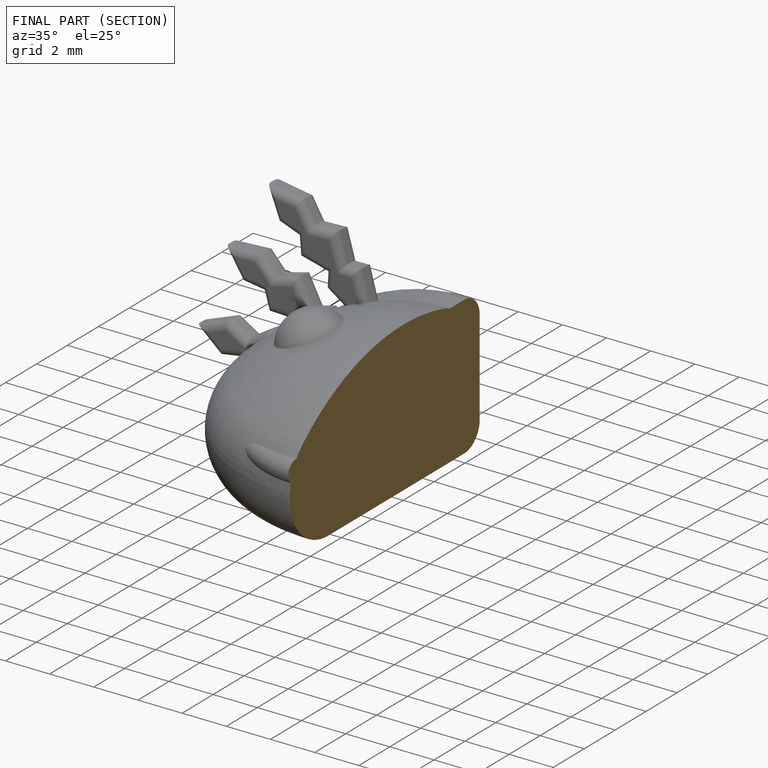
[diagram: finished part — half-section view (interior)]
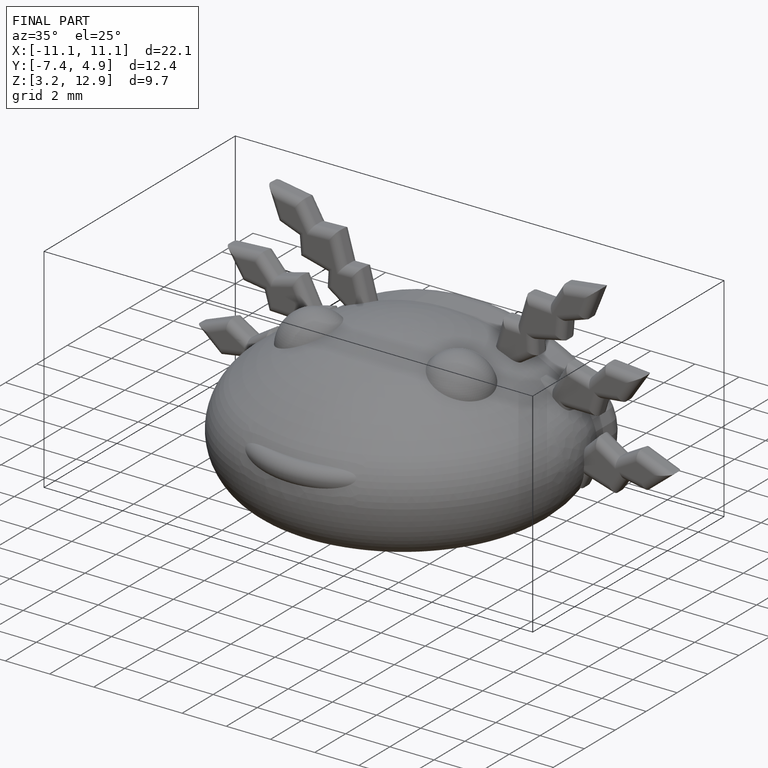
[diagram: finished part — iso view with bounding-box wireframe]
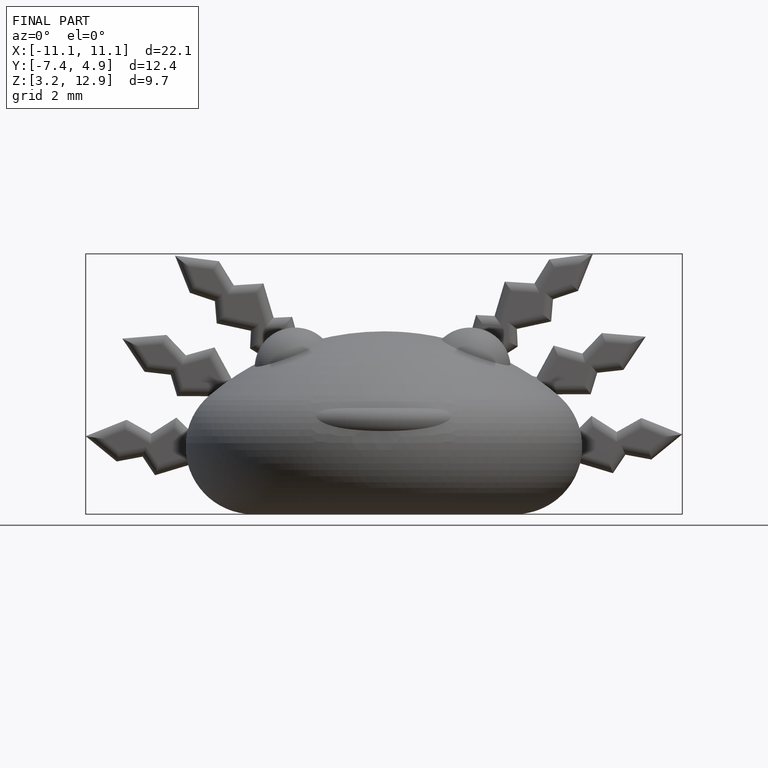
[diagram: finished part — front view with bounding-box wireframe]
